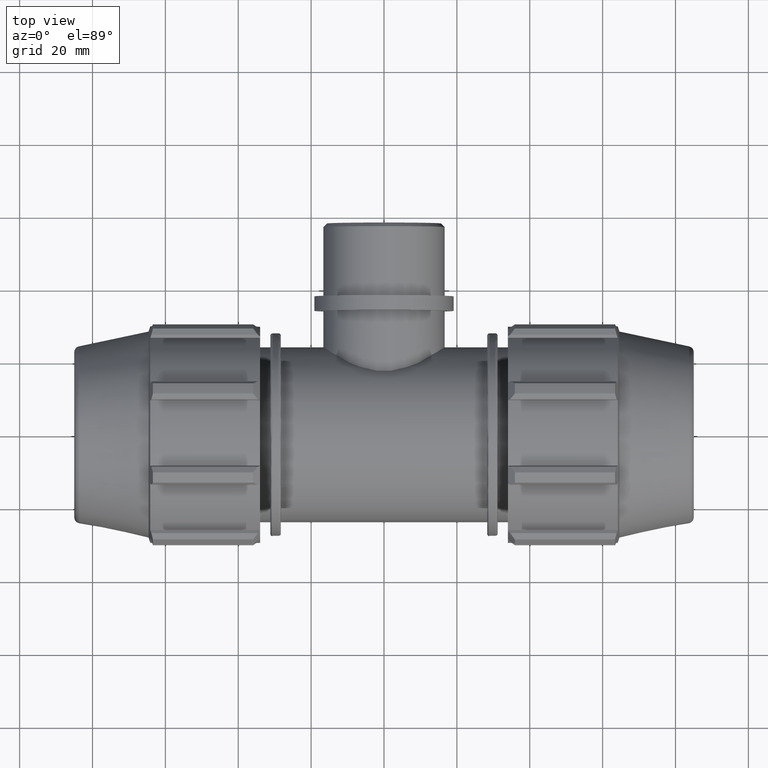
[diagram: clean part render]
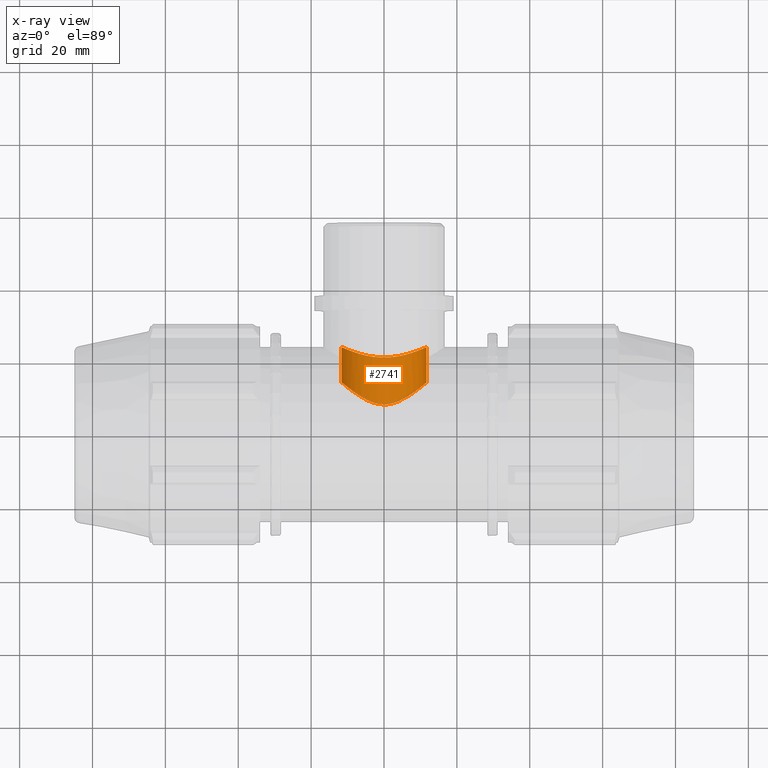
[diagram: x-ray — body ghosted, one internal face saturated and labeled with its STEP entity id]
A machine part, top view, then the same camera in x-ray: the body is ghosted and one INTERNAL B-rep face — a face not visible from any outside direction — is saturated and labeled: STEP entity #2741.
In plain terms, the highlighted cylindrical surface (bore or boss wall) has radius 11.6372 mm, axis along (0, -1, 0).
Its self-contained STEP definition (entity closure, byte-faithful):
#700=FACE_BOUND('',#905,.T.);
#746=FACE_OUTER_BOUND('',#904,.T.);
#904=EDGE_LOOP('',(#1767));
#905=EDGE_LOOP('',(#1768));
#1108=B_SPLINE_CURVE_WITH_KNOTS('',3,(#3938,#3939,#3940,#3941,#3942,#3943,
#3944,#3945,#3946,#3947,#3948,#3949,#3950,#3951,#3952,#3953,#3954,#3955,
#3956,#3957,#3958,#3959,#3960,#3961,#3962,#3963,#3964,#3965,#3966,#3967,
#3968,#3969,#3970,#3971,#3972,#3973,#3974,#3975,#3976,#3977,#3978,#3979,
#3980,#3981,#3982,#3983,#3984,#3985,#3986,#3987),.UNSPECIFIED.,.T.,.F.,
(4,2,2,2,2,2,2,2,2,2,2,2,2,2,2,2,2,2,2,2,2,2,2,2,4),(0.,0.239471066088572,
0.478942132177145,0.95788426435429,1.42093651673423,1.6524626429242,1.88398876911417,
2.11551489530414,2.34704102149411,2.81009327387405,3.28903540605119,3.52850647213977,
3.76797753822834,4.00744860431691,4.24691967040548,4.72586180258263,5.18891405496257,
5.42044018115254,5.65196630734251,5.88349243353248,6.11501855972245,6.57807081210239,
7.05701294427954,7.29648401036811,7.53595507645668),.UNSPECIFIED.);
#1109=B_SPLINE_CURVE_WITH_KNOTS('',3,(#3989,#3990,#3991,#3992,#3993,#3994,
#3995,#3996,#3997,#3998,#3999,#4000,#4001,#4002,#4003,#4004,#4005,#4006,
#4007,#4008,#4009,#4010,#4011,#4012,#4013,#4014,#4015,#4016,#4017,#4018,
#4019,#4020,#4021,#4022,#4023,#4024,#4025,#4026,#4027,#4028,#4029,#4030),
 .UNSPECIFIED.,.T.,.F.,(4,2,2,2,2,2,2,2,2,2,2,2,2,2,2,2,2,2,2,2,4),(0.,
0.2236206117153,0.447241223430599,0.894482446861199,1.34066341931325,1.7868443917653,
2.23302536421735,2.6792063366694,3.1264475601,3.3500681718153,3.5736887835306,
3.7973093952459,4.0209300069612,4.4681712303918,4.91435220284385,5.3605331752959,
5.80671414774796,6.25289512020001,6.70013634363061,6.92375695534591,7.14737756706121),
 .UNSPECIFIED.);
#1113=VERTEX_POINT('',#3937);
#1114=VERTEX_POINT('',#3988);
#1383=EDGE_CURVE('',#1113,#1113,#1108,.T.);
#1384=EDGE_CURVE('',#1114,#1114,#1109,.T.);
#1767=ORIENTED_EDGE('',*,*,#1383,.F.);
#1768=ORIENTED_EDGE('',*,*,#1384,.F.);
#2535=CYLINDRICAL_SURFACE('',#2902,11.63715);
#2741=ADVANCED_FACE('',(#746,#700),#2535,.F.);
#2902=AXIS2_PLACEMENT_3D('',#3936,#3183,#3184);
#3183=DIRECTION('center_axis',(1.27611841910938E-16,-1.,0.));
#3184=DIRECTION('ref_axis',(-1.,-1.27611841910938E-16,0.));
#3936=CARTESIAN_POINT('Origin',(-7.10295143505465E-15,58.,0.));
#3937=CARTESIAN_POINT('',(-2.77555756156289E-16,8.48155291662437,-11.63715));
#3938=CARTESIAN_POINT('Ctrl Pts',(-2.77555756156289E-16,8.48155291662437,
-11.63715));
#3939=CARTESIAN_POINT('Ctrl Pts',(-0.798236886961909,8.48155291662437,-11.63715));
#3940=CARTESIAN_POINT('Ctrl Pts',(-1.58776388030351,8.59743885794619,-11.5546757492908));
#3941=CARTESIAN_POINT('Ctrl Pts',(-3.1154125177322,9.00559575944403,-11.2394720140927));
#3942=CARTESIAN_POINT('Ctrl Pts',(-3.85413772540388,9.2956588385679,-11.0068129037495));
#3943=CARTESIAN_POINT('Ctrl Pts',(-5.95842874052842,10.291366795589,-10.1116062951492));
#3944=CARTESIAN_POINT('Ctrl Pts',(-7.21594019606883,11.1120730460177,-9.24147516130123));
#3945=CARTESIAN_POINT('Ctrl Pts',(-9.20787453926337,12.4991121929838,-7.24954081810669));
#3946=CARTESIAN_POINT('Ctrl Pts',(-10.0960258841748,13.180434569056,-5.99132256774999));
#3947=CARTESIAN_POINT('Ctrl Pts',(-11.0081829776063,13.8953652587134,-3.85276246645238));
#3948=CARTESIAN_POINT('Ctrl Pts',(-11.2446029078139,14.0843538276923,-3.09841421241173));
#3949=CARTESIAN_POINT('Ctrl Pts',(-11.5591567037792,14.3367371424538,-1.55793500845594));
#3950=CARTESIAN_POINT('Ctrl Pts',(-11.63715,14.4,-0.771753753966566));
#3951=CARTESIAN_POINT('Ctrl Pts',(-11.63715,14.4,0.771753753966566));
#3952=CARTESIAN_POINT('Ctrl Pts',(-11.5591567037792,14.3367371424538,1.55793500845594));
#3953=CARTESIAN_POINT('Ctrl Pts',(-11.2446029078139,14.0843538276923,3.09841421241173));
#3954=CARTESIAN_POINT('Ctrl Pts',(-11.0081829776063,13.8953652587134,3.85276246645238));
#3955=CARTESIAN_POINT('Ctrl Pts',(-10.0960258841748,13.180434569056,5.99132256774999));
#3956=CARTESIAN_POINT('Ctrl Pts',(-9.20787453926337,12.4991121929838,7.24954081810669));
#3957=CARTESIAN_POINT('Ctrl Pts',(-7.21594019606883,11.1120730460177,9.24147516130123));
#3958=CARTESIAN_POINT('Ctrl Pts',(-5.95842874052842,10.291366795589,10.1116062951492));
#3959=CARTESIAN_POINT('Ctrl Pts',(-3.85413772540388,9.29565883856789,11.0068129037495));
#3960=CARTESIAN_POINT('Ctrl Pts',(-3.1154125177322,9.00559575944403,11.2394720140927));
#3961=CARTESIAN_POINT('Ctrl Pts',(-1.58776388030351,8.59743885794618,11.5546757492908));
#3962=CARTESIAN_POINT('Ctrl Pts',(-0.798236886961908,8.48155291662437,11.63715));
#3963=CARTESIAN_POINT('Ctrl Pts',(0.798236886961906,8.48155291662437,11.63715));
#3964=CARTESIAN_POINT('Ctrl Pts',(1.58776388030351,8.59743885794619,11.5546757492908));
#3965=CARTESIAN_POINT('Ctrl Pts',(3.1154125177322,9.00559575944403,11.2394720140927));
#3966=CARTESIAN_POINT('Ctrl Pts',(3.85413772540388,9.2956588385679,11.0068129037495));
#3967=CARTESIAN_POINT('Ctrl Pts',(5.95842874052842,10.291366795589,10.1116062951492));
#3968=CARTESIAN_POINT('Ctrl Pts',(7.21594019606883,11.1120730460177,9.24147516130123));
#3969=CARTESIAN_POINT('Ctrl Pts',(9.20787453926337,12.4991121929838,7.24954081810669));
#3970=CARTESIAN_POINT('Ctrl Pts',(10.0960258841748,13.1804345690561,5.99132256774999));
#3971=CARTESIAN_POINT('Ctrl Pts',(11.0081829776062,13.8953652587134,3.85276246645238));
#3972=CARTESIAN_POINT('Ctrl Pts',(11.2446029078139,14.0843538276923,3.09841421241173));
#3973=CARTESIAN_POINT('Ctrl Pts',(11.5591567037792,14.3367371424538,1.55793500845594));
#3974=CARTESIAN_POINT('Ctrl Pts',(11.63715,14.4,0.771753753966568));
#3975=CARTESIAN_POINT('Ctrl Pts',(11.63715,14.4,-0.771753753966566));
#3976=CARTESIAN_POINT('Ctrl Pts',(11.5591567037792,14.3367371424538,-1.55793500845594));
#3977=CARTESIAN_POINT('Ctrl Pts',(11.2446029078139,14.0843538276923,-3.09841421241173));
#3978=CARTESIAN_POINT('Ctrl Pts',(11.0081829776062,13.8953652587134,-3.85276246645238));
#3979=CARTESIAN_POINT('Ctrl Pts',(10.0960258841748,13.1804345690561,-5.99132256774999));
#3980=CARTESIAN_POINT('Ctrl Pts',(9.20787453926337,12.4991121929838,-7.24954081810668));
#3981=CARTESIAN_POINT('Ctrl Pts',(7.21594019606884,11.1120730460177,-9.24147516130122));
#3982=CARTESIAN_POINT('Ctrl Pts',(5.95842874052843,10.291366795589,-10.1116062951492));
#3983=CARTESIAN_POINT('Ctrl Pts',(3.85413772540388,9.2956588385679,-11.0068129037495));
#3984=CARTESIAN_POINT('Ctrl Pts',(3.1154125177322,9.00559575944404,-11.2394720140927));
#3985=CARTESIAN_POINT('Ctrl Pts',(1.58776388030352,8.59743885794619,-11.5546757492908));
#3986=CARTESIAN_POINT('Ctrl Pts',(0.79823688696191,8.48155291662437,-11.63715));
#3987=CARTESIAN_POINT('Ctrl Pts',(4.16333634234434E-16,8.48155291662437,
-11.63715));
#3988=CARTESIAN_POINT('',(-2.35922392732846E-15,20.9899199588159,-11.63715));
#3989=CARTESIAN_POINT('Ctrl Pts',(-2.35922392732846E-15,20.9899199588159,
-11.63715));
#3990=CARTESIAN_POINT('Ctrl Pts',(0.745402039050997,20.9899199588159,-11.63715));
#3991=CARTESIAN_POINT('Ctrl Pts',(1.51116929376819,21.030783799884,-11.5644014620462));
#3992=CARTESIAN_POINT('Ctrl Pts',(3.02526404112938,21.1934531607997,-11.2635159437977));
#3993=CARTESIAN_POINT('Ctrl Pts',(3.7736430129756,21.3150002350371,-11.03549835819));
#3994=CARTESIAN_POINT('Ctrl Pts',(5.91652576739241,21.763049519081,-10.139795156789));
#3995=CARTESIAN_POINT('Ctrl Pts',(7.20799558906484,22.1727056891817,-9.24941976830522));
#3996=CARTESIAN_POINT('Ctrl Pts',(9.24700002044849,22.9169143462978,-7.21041533692157));
#3997=CARTESIAN_POINT('Ctrl Pts',(10.1391614597225,23.3044210441786,-5.91811210406171));
#3998=CARTESIAN_POINT('Ctrl Pts',(11.3348641933444,23.8489535673863,-3.05736909425999));
#3999=CARTESIAN_POINT('Ctrl Pts',(11.63715,24.,-1.48726990817351));
#4000=CARTESIAN_POINT('Ctrl Pts',(11.63715,24.,1.4872699081735));
#4001=CARTESIAN_POINT('Ctrl Pts',(11.3348641933444,23.8489535673863,3.05736909425999));
#4002=CARTESIAN_POINT('Ctrl Pts',(10.1391614597225,23.3044210441786,5.91811210406171));
#4003=CARTESIAN_POINT('Ctrl Pts',(9.2470000204485,22.9169143462978,7.21041533692156));
#4004=CARTESIAN_POINT('Ctrl Pts',(7.20799558906484,22.1727056891817,9.24941976830522));
#4005=CARTESIAN_POINT('Ctrl Pts',(5.91652576739241,21.763049519081,10.139795156789));
#4006=CARTESIAN_POINT('Ctrl Pts',(3.7736430129756,21.3150002350371,11.03549835819));
#4007=CARTESIAN_POINT('Ctrl Pts',(3.02526404112938,21.1934531607997,11.2635159437977));
#4008=CARTESIAN_POINT('Ctrl Pts',(1.51116929376819,21.030783799884,11.5644014620462));
#4009=CARTESIAN_POINT('Ctrl Pts',(0.745402039050997,20.9899199588159,11.63715));
#4010=CARTESIAN_POINT('Ctrl Pts',(-0.745402039051001,20.9899199588159,11.63715));
#4011=CARTESIAN_POINT('Ctrl Pts',(-1.51116929376819,21.030783799884,11.5644014620462));
#4012=CARTESIAN_POINT('Ctrl Pts',(-3.02526404112938,21.1934531607997,11.2635159437977));
#4013=CARTESIAN_POINT('Ctrl Pts',(-3.7736430129756,21.3150002350371,11.03549835819));
#4014=CARTESIAN_POINT('Ctrl Pts',(-5.91652576739241,21.763049519081,10.139795156789));
#4015=CARTESIAN_POINT('Ctrl Pts',(-7.20799558906484,22.1727056891817,9.24941976830522));
#4016=CARTESIAN_POINT('Ctrl Pts',(-9.2470000204485,22.9169143462978,7.21041533692157));
#4017=CARTESIAN_POINT('Ctrl Pts',(-10.1391614597225,23.3044210441786,5.91811210406172));
#4018=CARTESIAN_POINT('Ctrl Pts',(-11.3348641933444,23.8489535673863,3.05736909425999));
#4019=CARTESIAN_POINT('Ctrl Pts',(-11.63715,24.,1.48726990817351));
#4020=CARTESIAN_POINT('Ctrl Pts',(-11.63715,24.,-1.4872699081735));
#4021=CARTESIAN_POINT('Ctrl Pts',(-11.3348641933444,23.8489535673863,-3.05736909425999));
#4022=CARTESIAN_POINT('Ctrl Pts',(-10.1391614597225,23.3044210441786,-5.91811210406171));
#4023=CARTESIAN_POINT('Ctrl Pts',(-9.2470000204485,22.9169143462978,-7.21041533692156));
#4024=CARTESIAN_POINT('Ctrl Pts',(-7.20799558906484,22.1727056891817,-9.24941976830522));
#4025=CARTESIAN_POINT('Ctrl Pts',(-5.91652576739241,21.763049519081,-10.139795156789));
#4026=CARTESIAN_POINT('Ctrl Pts',(-3.7736430129756,21.3150002350371,-11.03549835819));
#4027=CARTESIAN_POINT('Ctrl Pts',(-3.02526404112938,21.1934531607997,-11.2635159437977));
#4028=CARTESIAN_POINT('Ctrl Pts',(-1.51116929376819,21.030783799884,-11.5644014620462));
#4029=CARTESIAN_POINT('Ctrl Pts',(-0.745402039051003,20.9899199588159,-11.63715));
#4030=CARTESIAN_POINT('Ctrl Pts',(-2.35922392732846E-15,20.9899199588159,
-11.63715));